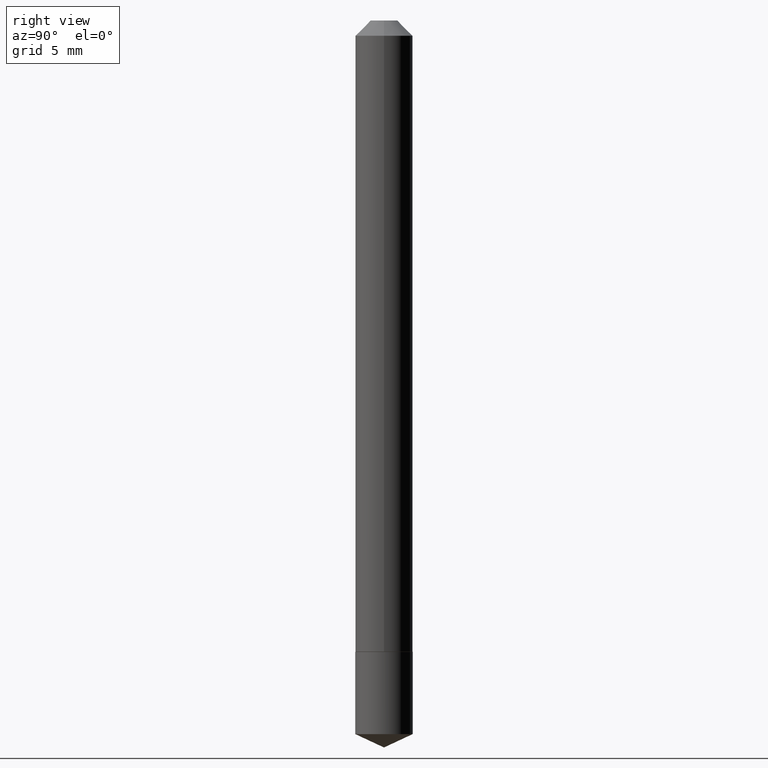
[diagram: clean part render]
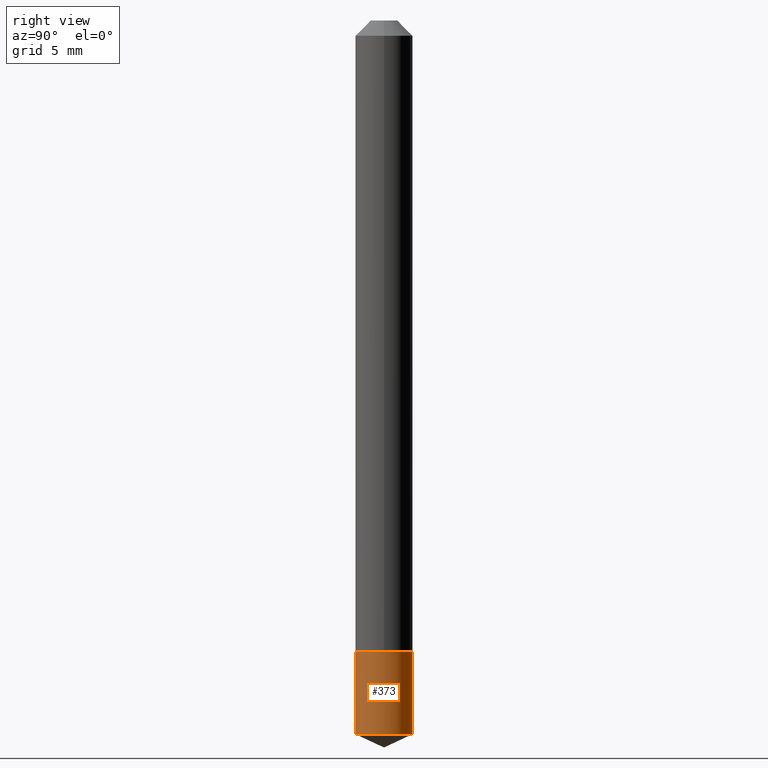
[diagram: same view with one face highlighted and labeled with its STEP entity id]
A machine part, right view. The second image highlights one B-rep face of the part: STEP entity #373.
In plain terms, the highlighted cylindrical surface (edge-blend (fillet) strip) has radius 1.4999 mm, axis along (-0, 0, 1).
Its self-contained STEP definition (entity closure, byte-faithful):
#10 = VERTEX_POINT ( 'NONE', #284 ) ;
#23 = CARTESIAN_POINT ( 'NONE',  ( 3.177153072995728757E-29, -4.536132555425014733E-15, -1.299199999999999910 ) ) ;
#30 = CARTESIAN_POINT ( 'NONE',  ( 4.195754854663708995E-16, 0.05904999999999546723, -1.299200000000000133 ) ) ;
#34 = ORIENTED_EDGE ( 'NONE', *, *, #74, .T. ) ;
#50 = CARTESIAN_POINT ( 'NONE',  ( -4.123439461173421824E-16, -0.05905000000000452942, -1.299199999999999688 ) ) ;
#52 = CYLINDRICAL_SURFACE ( 'NONE', #120, 0.05904999999999999832 ) ;
#56 = EDGE_CURVE ( 'NONE', #243, #216, #250, .T. ) ;
#74 = EDGE_CURVE ( 'NONE', #243, #10, #209, .T. ) ;
#80 = DIRECTION ( 'NONE',  ( -2.445313604768416538E-29, 3.491703596105404816E-15, 1.000000000000000000 ) ) ;
#83 = AXIS2_PLACEMENT_3D ( 'NONE', #242, #96, #212 ) ;
#84 = DIRECTION ( 'NONE',  ( -2.445313604768416538E-29, 3.491703596105404816E-15, 1.000000000000000000 ) ) ;
#96 = DIRECTION ( 'NONE',  ( -2.445313604768416538E-29, 3.491703596105404816E-15, 1.000000000000000000 ) ) ;
#116 = AXIS2_PLACEMENT_3D ( 'NONE', #280, #80, #228 ) ;
#120 = AXIS2_PLACEMENT_3D ( 'NONE', #23, #84, #224 ) ;
#138 = VECTOR ( 'NONE', #207, 39.37007874015748143 ) ;
#140 = EDGE_CURVE ( 'NONE', #10, #161, #297, .T. ) ;
#161 = VERTEX_POINT ( 'NONE', #238 ) ;
#170 = VECTOR ( 'NONE', #314, 39.37007874015748143 ) ;
#181 = ORIENTED_EDGE ( 'NONE', *, *, #56, .F. ) ;
#191 = CARTESIAN_POINT ( 'NONE',  ( -4.123439461173381888E-16, -0.05905000000000514698, -1.468564532785947341 ) ) ;
#193 = EDGE_CURVE ( 'NONE', #216, #161, #351, .T. ) ;
#207 = DIRECTION ( 'NONE',  ( -2.445313604768416818E-29, 3.491703596105404816E-15, 1.000000000000000000 ) ) ;
#209 = CIRCLE ( 'NONE', #116, 0.05904999999999999832 ) ;
#212 = DIRECTION ( 'NONE',  ( -6.982962677686265922E-15, -1.000000000000000000, 4.626330217890369336E-15 ) ) ;
#216 = VERTEX_POINT ( 'NONE', #50 ) ;
#224 = DIRECTION ( 'NONE',  ( -6.982962677686265922E-15, -1.000000000000000000, 4.626330217890369336E-15 ) ) ;
#228 = DIRECTION ( 'NONE',  ( -6.982962677686265922E-15, -1.000000000000000000, 4.626330217890369336E-15 ) ) ;
#238 = CARTESIAN_POINT ( 'NONE',  ( 4.195754854663750410E-16, 0.05904999999999546723, -1.299200000000000133 ) ) ;
#242 = CARTESIAN_POINT ( 'NONE',  ( 3.177153072995728757E-29, -4.536132555425014733E-15, -1.299199999999999910 ) ) ;
#243 = VERTEX_POINT ( 'NONE', #191 ) ;
#250 = LINE ( 'NONE', #338, #170 ) ;
#272 = EDGE_LOOP ( 'NONE', ( #34, #328, #362, #181 ) ) ;
#280 = CARTESIAN_POINT ( 'NONE',  ( 3.591302469182453116E-29, -5.127503303606418827E-15, -1.468564532785947563 ) ) ;
#284 = CARTESIAN_POINT ( 'NONE',  ( 4.195754854663751396E-16, 0.05904999999999488436, -1.468564532785947785 ) ) ;
#297 = LINE ( 'NONE', #30, #138 ) ;
#314 = DIRECTION ( 'NONE',  ( -2.445313604768416818E-29, 3.491703596105404816E-15, 1.000000000000000000 ) ) ;
#316 = FACE_OUTER_BOUND ( 'NONE', #272, .T. ) ;
#328 = ORIENTED_EDGE ( 'NONE', *, *, #140, .T. ) ;
#338 = CARTESIAN_POINT ( 'NONE',  ( -4.123439461173421824E-16, -0.05905000000000452942, -1.299199999999999688 ) ) ;
#351 = CIRCLE ( 'NONE', #83, 0.05904999999999999832 ) ;
#362 = ORIENTED_EDGE ( 'NONE', *, *, #193, .F. ) ;
#373 = ADVANCED_FACE ( 'NONE', ( #316 ), #52, .T. ) ;